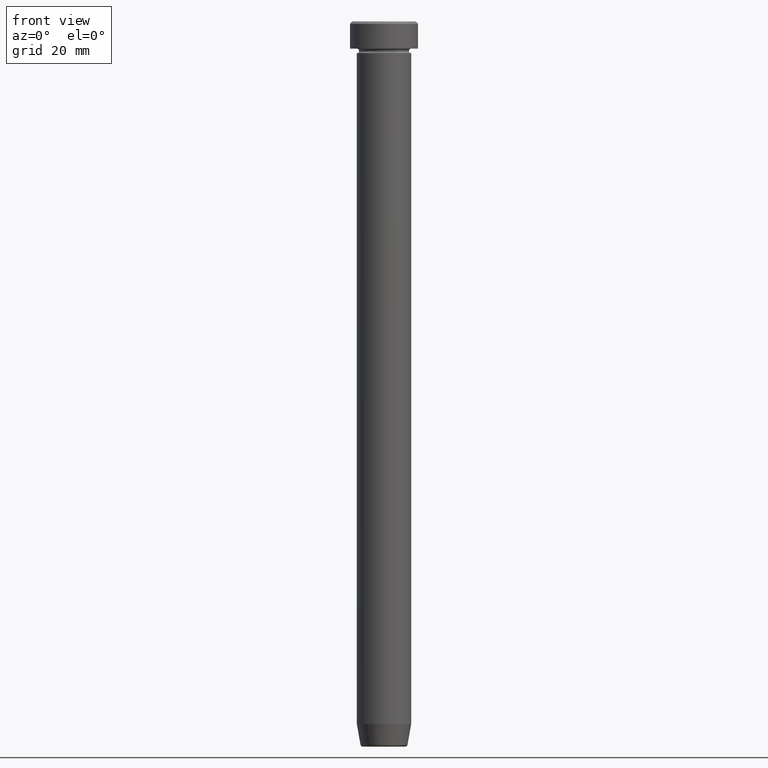
[diagram: clean part render]
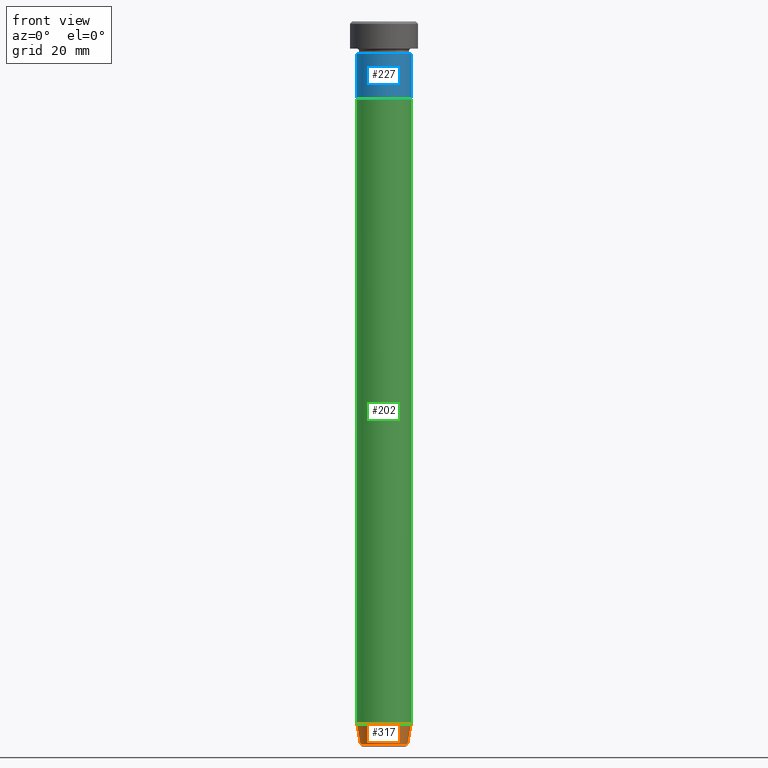
[diagram: same view with three faces highlighted in distinct colors, each labeled with its STEP entity id]
A machine part, front view with three faces highlighted in distinct colors.
Their STEP definitions:

[orange] entity #317 — the highlighted conical surface has half-angle 10 deg.
#21 = CARTESIAN_POINT ( 'NONE',  ( 5.118365096457672792, 0.000000000000000000, -159.9999999999999716 ) ) ;
#44 = CIRCLE ( 'NONE', #102, 6.000000000000000000 ) ;
#83 = EDGE_CURVE ( 'NONE', #250, #95, #377, .T. ) ;
#95 = VERTEX_POINT ( 'NONE', #323 ) ;
#102 = AXIS2_PLACEMENT_3D ( 'NONE', #356, #118, #534 ) ;
#104 = EDGE_LOOP ( 'NONE', ( #491, #439, #267, #376 ) ) ;
#116 = AXIS2_PLACEMENT_3D ( 'NONE', #413, #130, #508 ) ;
#118 = DIRECTION ( 'NONE',  ( -0.000000000000000000, -0.000000000000000000, 1.000000000000000000 ) ) ;
#120 = CARTESIAN_POINT ( 'NONE',  ( 0.000000000000000000, 0.000000000000000000, -159.5868240888334242 ) ) ;
#130 = DIRECTION ( 'NONE',  ( -0.000000000000000000, -0.000000000000000000, 1.000000000000000000 ) ) ;
#153 = EDGE_CURVE ( 'NONE', #250, #165, #322, .T. ) ;
#165 = VERTEX_POINT ( 'NONE', #352 ) ;
#177 = VECTOR ( 'NONE', #578, 999.9999999999998863 ) ;
#229 = CARTESIAN_POINT ( 'NONE',  ( -5.191219157375138060, 6.852645359818000008E-16, -159.5868240888334242 ) ) ;
#250 = VERTEX_POINT ( 'NONE', #229 ) ;
#267 = ORIENTED_EDGE ( 'NONE', *, *, #408, .T. ) ;
#288 = VERTEX_POINT ( 'NONE', #417 ) ;
#317 = ADVANCED_FACE ( 'NONE', ( #467 ), #582, .T. ) ;
#322 = CIRCLE ( 'NONE', #458, 5.191219157375138060 ) ;
#323 = CARTESIAN_POINT ( 'NONE',  ( -6.000000000000000000, 7.347880794884119736E-16, -154.9999999999999716 ) ) ;
#328 = DIRECTION ( 'NONE',  ( -0.1736481776669306087, 2.126576849575774688E-17, 0.9848077530122081313 ) ) ;
#351 = VECTOR ( 'NONE', #328, 999.9999999999998863 ) ;
#352 = CARTESIAN_POINT ( 'NONE',  ( 5.191219157375138060, 0.000000000000000000, -159.5868240888334242 ) ) ;
#356 = CARTESIAN_POINT ( 'NONE',  ( 0.000000000000000000, 0.000000000000000000, -154.9999999999999716 ) ) ;
#376 = ORIENTED_EDGE ( 'NONE', *, *, #485, .F. ) ;
#377 = LINE ( 'NONE', #564, #351 ) ;
#408 = EDGE_CURVE ( 'NONE', #165, #288, #437, .T. ) ;
#413 = CARTESIAN_POINT ( 'NONE',  ( 0.000000000000000000, 0.000000000000000000, -159.9999999999999716 ) ) ;
#417 = CARTESIAN_POINT ( 'NONE',  ( 6.000000000000000000, 0.000000000000000000, -154.9999999999999716 ) ) ;
#437 = LINE ( 'NONE', #21, #177 ) ;
#439 = ORIENTED_EDGE ( 'NONE', *, *, #153, .T. ) ;
#458 = AXIS2_PLACEMENT_3D ( 'NONE', #120, #496, #526 ) ;
#467 = FACE_OUTER_BOUND ( 'NONE', #104, .T. ) ;
#485 = EDGE_CURVE ( 'NONE', #95, #288, #44, .T. ) ;
#491 = ORIENTED_EDGE ( 'NONE', *, *, #83, .F. ) ;
#496 = DIRECTION ( 'NONE',  ( -0.000000000000000000, -0.000000000000000000, 1.000000000000000000 ) ) ;
#508 = DIRECTION ( 'NONE',  ( 1.000000000000000000, 0.000000000000000000, 0.000000000000000000 ) ) ;
#526 = DIRECTION ( 'NONE',  ( -1.000000000000000000, 0.000000000000000000, 0.000000000000000000 ) ) ;
#534 = DIRECTION ( 'NONE',  ( 1.000000000000000000, 0.000000000000000000, 0.000000000000000000 ) ) ;
#564 = CARTESIAN_POINT ( 'NONE',  ( -5.118365096457672792, 6.268189432244423169E-16, -159.9999999999999716 ) ) ;
#578 = DIRECTION ( 'NONE',  ( 0.1736481776669306087, 0.000000000000000000, 0.9848077530122081313 ) ) ;
#582 = CONICAL_SURFACE ( 'NONE', #116, 5.118365096457672792, 0.1745329251994331976 ) ;

[blue] entity #227 — the highlighted cylindrical surface (edge-blend (fillet) strip) has radius 6 mm, axis along (-0, -0, 1).
#10 = EDGE_CURVE ( 'NONE', #22, #585, #368, .T. ) ;
#12 = FACE_OUTER_BOUND ( 'NONE', #434, .T. ) ;
#22 = VERTEX_POINT ( 'NONE', #446 ) ;
#86 = ORIENTED_EDGE ( 'NONE', *, *, #10, .T. ) ;
#89 = EDGE_CURVE ( 'NONE', #585, #565, #424, .T. ) ;
#129 = ORIENTED_EDGE ( 'NONE', *, *, #157, .F. ) ;
#132 = DIRECTION ( 'NONE',  ( -0.000000000000000000, -0.000000000000000000, 1.000000000000000000 ) ) ;
#133 = CIRCLE ( 'NONE', #545, 6.000000000000000000 ) ;
#144 = CARTESIAN_POINT ( 'NONE',  ( -6.000000000000000000, 7.347880794884119736E-16, 0.000000000000000000 ) ) ;
#151 = DIRECTION ( 'NONE',  ( -0.000000000000000000, -0.000000000000000000, 1.000000000000000000 ) ) ;
#157 = EDGE_CURVE ( 'NONE', #168, #565, #133, .T. ) ;
#168 = VERTEX_POINT ( 'NONE', #214 ) ;
#185 = ORIENTED_EDGE ( 'NONE', *, *, #89, .T. ) ;
#191 = CARTESIAN_POINT ( 'NONE',  ( 6.000000000000000000, 0.000000000000000000, 0.000000000000000000 ) ) ;
#209 = DIRECTION ( 'NONE',  ( 1.000000000000000000, 0.000000000000000000, 0.000000000000000000 ) ) ;
#214 = CARTESIAN_POINT ( 'NONE',  ( -6.000000000000000000, 7.347880794884119736E-16, -7.000000000000000000 ) ) ;
#215 = CARTESIAN_POINT ( 'NONE',  ( 0.000000000000000000, 0.000000000000000000, -17.00000000000000000 ) ) ;
#227 = ADVANCED_FACE ( 'NONE', ( #12 ), #385, .T. ) ;
#235 = VECTOR ( 'NONE', #294, 1000.000000000000000 ) ;
#294 = DIRECTION ( 'NONE',  ( -0.000000000000000000, -0.000000000000000000, 1.000000000000000000 ) ) ;
#333 = VECTOR ( 'NONE', #132, 1000.000000000000000 ) ;
#358 = CARTESIAN_POINT ( 'NONE',  ( 6.000000000000000000, 0.000000000000000000, -7.000000000000000000 ) ) ;
#361 = EDGE_CURVE ( 'NONE', #22, #168, #590, .T. ) ;
#368 = CIRCLE ( 'NONE', #499, 6.000000000000000000 ) ;
#385 = CYLINDRICAL_SURFACE ( 'NONE', #451, 6.000000000000000000 ) ;
#396 = DIRECTION ( 'NONE',  ( 1.000000000000000000, 0.000000000000000000, 0.000000000000000000 ) ) ;
#406 = DIRECTION ( 'NONE',  ( -0.000000000000000000, -0.000000000000000000, 1.000000000000000000 ) ) ;
#424 = LINE ( 'NONE', #191, #333 ) ;
#434 = EDGE_LOOP ( 'NONE', ( #572, #86, #185, #129 ) ) ;
#446 = CARTESIAN_POINT ( 'NONE',  ( -6.000000000000000000, 7.347880794884119736E-16, -17.00000000000000000 ) ) ;
#451 = AXIS2_PLACEMENT_3D ( 'NONE', #569, #151, #396 ) ;
#484 = DIRECTION ( 'NONE',  ( -0.000000000000000000, -0.000000000000000000, 1.000000000000000000 ) ) ;
#499 = AXIS2_PLACEMENT_3D ( 'NONE', #215, #406, #588 ) ;
#545 = AXIS2_PLACEMENT_3D ( 'NONE', #566, #484, #209 ) ;
#565 = VERTEX_POINT ( 'NONE', #358 ) ;
#566 = CARTESIAN_POINT ( 'NONE',  ( 0.000000000000000000, 0.000000000000000000, -7.000000000000000000 ) ) ;
#569 = CARTESIAN_POINT ( 'NONE',  ( 0.000000000000000000, 0.000000000000000000, 0.000000000000000000 ) ) ;
#572 = ORIENTED_EDGE ( 'NONE', *, *, #361, .F. ) ;
#585 = VERTEX_POINT ( 'NONE', #592 ) ;
#588 = DIRECTION ( 'NONE',  ( 1.000000000000000000, 0.000000000000000000, 0.000000000000000000 ) ) ;
#590 = LINE ( 'NONE', #144, #235 ) ;
#592 = CARTESIAN_POINT ( 'NONE',  ( 6.000000000000000000, 0.000000000000000000, -17.00000000000000000 ) ) ;

[green] entity #202 — the highlighted cylindrical surface (edge-blend (fillet) strip) has radius 6 mm, axis along (-0, -0, 1).
#44 = CIRCLE ( 'NONE', #102, 6.000000000000000000 ) ;
#73 = FACE_OUTER_BOUND ( 'NONE', #414, .T. ) ;
#95 = VERTEX_POINT ( 'NONE', #323 ) ;
#102 = AXIS2_PLACEMENT_3D ( 'NONE', #356, #118, #534 ) ;
#118 = DIRECTION ( 'NONE',  ( -0.000000000000000000, -0.000000000000000000, 1.000000000000000000 ) ) ;
#162 = DIRECTION ( 'NONE',  ( -0.000000000000000000, -0.000000000000000000, 1.000000000000000000 ) ) ;
#163 = CARTESIAN_POINT ( 'NONE',  ( 0.000000000000000000, 0.000000000000000000, -17.00000000000000000 ) ) ;
#188 = AXIS2_PLACEMENT_3D ( 'NONE', #357, #342, #290 ) ;
#202 = ADVANCED_FACE ( 'NONE', ( #73 ), #308, .T. ) ;
#204 = DIRECTION ( 'NONE',  ( -0.000000000000000000, -0.000000000000000000, 1.000000000000000000 ) ) ;
#211 = AXIS2_PLACEMENT_3D ( 'NONE', #163, #204, #307 ) ;
#218 = DIRECTION ( 'NONE',  ( -0.000000000000000000, -0.000000000000000000, 1.000000000000000000 ) ) ;
#225 = CARTESIAN_POINT ( 'NONE',  ( -6.000000000000000000, 7.347880794884119736E-16, -17.00000000000000000 ) ) ;
#244 = VECTOR ( 'NONE', #162, 1000.000000000000000 ) ;
#259 = ORIENTED_EDGE ( 'NONE', *, *, #485, .T. ) ;
#284 = CARTESIAN_POINT ( 'NONE',  ( 6.000000000000000000, 0.000000000000000000, 0.000000000000000000 ) ) ;
#285 = CIRCLE ( 'NONE', #211, 6.000000000000000000 ) ;
#288 = VERTEX_POINT ( 'NONE', #417 ) ;
#290 = DIRECTION ( 'NONE',  ( 1.000000000000000000, 0.000000000000000000, 0.000000000000000000 ) ) ;
#298 = ORIENTED_EDGE ( 'NONE', *, *, #354, .T. ) ;
#300 = LINE ( 'NONE', #349, #244 ) ;
#307 = DIRECTION ( 'NONE',  ( 1.000000000000000000, 0.000000000000000000, 0.000000000000000000 ) ) ;
#308 = CYLINDRICAL_SURFACE ( 'NONE', #188, 6.000000000000000000 ) ;
#323 = CARTESIAN_POINT ( 'NONE',  ( -6.000000000000000000, 7.347880794884119736E-16, -154.9999999999999716 ) ) ;
#330 = CARTESIAN_POINT ( 'NONE',  ( 6.000000000000000000, 0.000000000000000000, -17.00000000000000000 ) ) ;
#342 = DIRECTION ( 'NONE',  ( -0.000000000000000000, -0.000000000000000000, 1.000000000000000000 ) ) ;
#346 = VERTEX_POINT ( 'NONE', #330 ) ;
#349 = CARTESIAN_POINT ( 'NONE',  ( -6.000000000000000000, 7.347880794884119736E-16, 0.000000000000000000 ) ) ;
#354 = EDGE_CURVE ( 'NONE', #288, #346, #514, .T. ) ;
#356 = CARTESIAN_POINT ( 'NONE',  ( 0.000000000000000000, 0.000000000000000000, -154.9999999999999716 ) ) ;
#357 = CARTESIAN_POINT ( 'NONE',  ( 0.000000000000000000, 0.000000000000000000, 0.000000000000000000 ) ) ;
#374 = ORIENTED_EDGE ( 'NONE', *, *, #392, .F. ) ;
#392 = EDGE_CURVE ( 'NONE', #95, #576, #300, .T. ) ;
#414 = EDGE_LOOP ( 'NONE', ( #374, #259, #298, #455 ) ) ;
#417 = CARTESIAN_POINT ( 'NONE',  ( 6.000000000000000000, 0.000000000000000000, -154.9999999999999716 ) ) ;
#455 = ORIENTED_EDGE ( 'NONE', *, *, #471, .F. ) ;
#471 = EDGE_CURVE ( 'NONE', #576, #346, #285, .T. ) ;
#485 = EDGE_CURVE ( 'NONE', #95, #288, #44, .T. ) ;
#514 = LINE ( 'NONE', #284, #537 ) ;
#534 = DIRECTION ( 'NONE',  ( 1.000000000000000000, 0.000000000000000000, 0.000000000000000000 ) ) ;
#537 = VECTOR ( 'NONE', #218, 1000.000000000000000 ) ;
#576 = VERTEX_POINT ( 'NONE', #225 ) ;